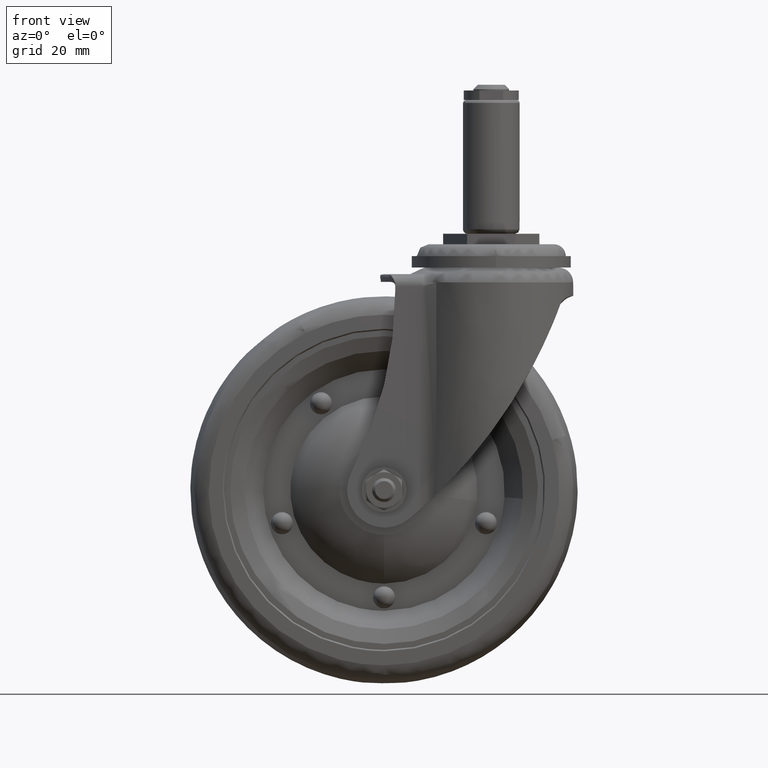
[diagram: clean part render]
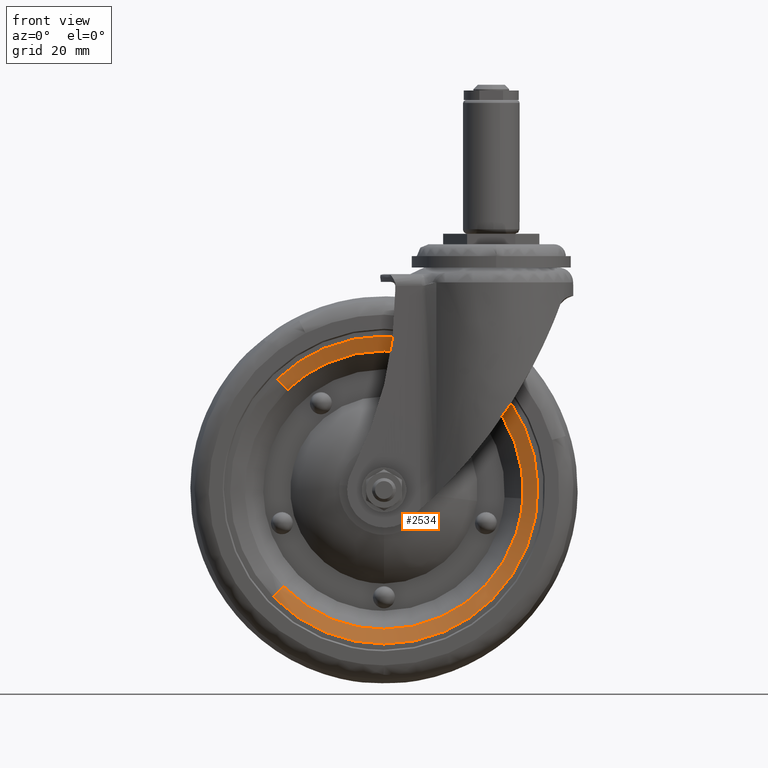
[diagram: same view with one face highlighted and labeled with its STEP entity id]
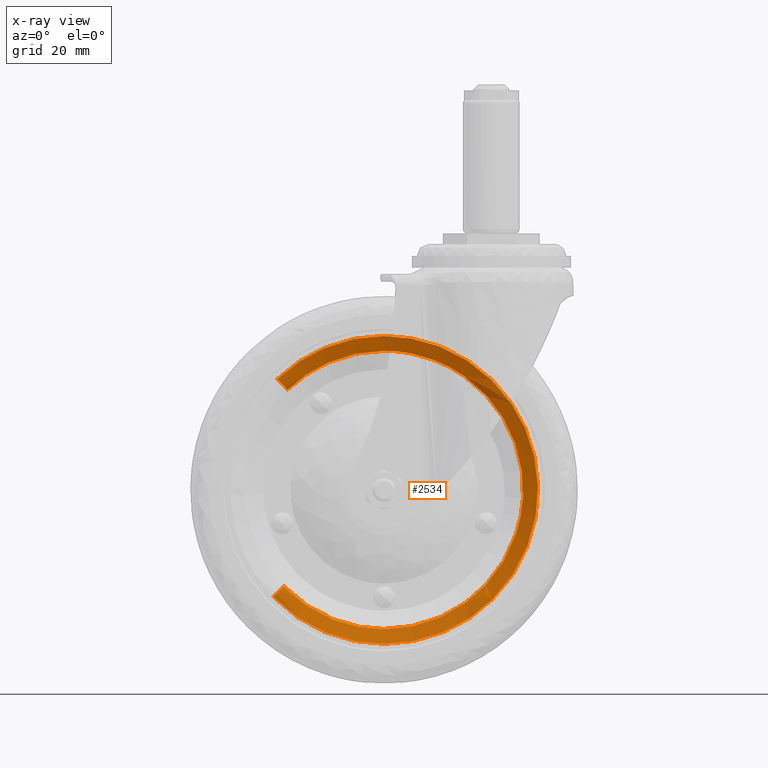
[diagram: x-ray of the same camera — body ghosted, the highlighted face saturated]
A machine part, front view. The second image highlights one B-rep face of the part: STEP entity #2534.
The next image is the same camera in x-ray: the body ghosted, the highlighted face saturated — about 0% of this face is hidden behind the body in this view.
In plain terms, the highlighted face is a freeform B-spline surface patch.
Its self-contained STEP definition (entity closure, byte-faithful):
#472=CARTESIAN_POINT('',(-19.576463500932380,-9.949747468313264,-42.274356688528300));
#473=VERTEX_POINT('',#472);
#474=CARTESIAN_POINT('',(-36.0,-9.949747468305830,-39.291721154953713));
#475=VERTEX_POINT('',#474);
#476=CARTESIAN_POINT('',(-19.576463500932373,-9.949747468313264,-42.274356688528307));
#477=CARTESIAN_POINT('',(-27.517397429003616,-9.949747468305832,-39.291721154953706));
#478=CARTESIAN_POINT('',(-36.0,-9.949747468305830,-39.291721154953713));
#486=(BOUNDED_CURVE()B_SPLINE_CURVE(2,(#476,#477,#478),.UNSPECIFIED.,.F.,.U.)B_SPLINE_CURVE_WITH_KNOTS((3,3),(0.440284170898375,0.500000000000000),.UNSPECIFIED.)CURVE()GEOMETRIC_REPRESENTATION_ITEM()RATIONAL_B_SPLINE_CURVE((0.893499554635112,0.930038554401244,1.0))REPRESENTATION_ITEM(''));
#487=EDGE_CURVE('',#473,#475,#486,.T.);
#489=CARTESIAN_POINT('',(-68.399482436912564,-9.949747468876772,-52.355657792426562));
#490=VERTEX_POINT('',#489);
#491=CARTESIAN_POINT('',(-36.0,-9.949747468305830,-39.291721154953713));
#492=CARTESIAN_POINT('',(-54.833524656206222,-9.949747468305832,-39.291721154953713));
#493=CARTESIAN_POINT('',(-68.399482436912564,-9.949747468876772,-52.355657792426570));
#501=(BOUNDED_CURVE()B_SPLINE_CURVE(2,(#491,#492,#493),.UNSPECIFIED.,.F.,.U.)B_SPLINE_CURVE_WITH_KNOTS((3,3),(0.500000000000000,0.622155737437377),.UNSPECIFIED.)CURVE()GEOMETRIC_REPRESENTATION_ITEM()RATIONAL_B_SPLINE_CURVE((1.0,0.856885651461742,0.853629213191970))REPRESENTATION_ITEM(''));
#502=EDGE_CURVE('',#475,#490,#501,.T.);
#504=CARTESIAN_POINT('',(-69.644530207573467,-9.949747468876765,-118.399670436912500));
#505=VERTEX_POINT('',#504);
#521=CARTESIAN_POINT('',(-36.0,-9.949747468305830,-132.708654845046310));
#522=VERTEX_POINT('',#521);
#523=CARTESIAN_POINT('',(-69.644530207573467,-9.949747468876767,-118.399670436912500));
#524=CARTESIAN_POINT('',(-55.865063346604764,-9.949747468305830,-132.708654845046230));
#525=CARTESIAN_POINT('',(-36.0,-9.949747468305830,-132.708654845046310));
#533=(BOUNDED_CURVE()B_SPLINE_CURVE(2,(#523,#524,#525),.UNSPECIFIED.,.F.,.U.)B_SPLINE_CURVE_WITH_KNOTS((3,3),(0.872155737437378,1.0),.UNSPECIFIED.)CURVE()GEOMETRIC_REPRESENTATION_ITEM()RATIONAL_B_SPLINE_CURVE((0.853629213191970,0.850221129724806,1.0))REPRESENTATION_ITEM(''));
#534=EDGE_CURVE('',#505,#522,#533,.T.);
#536=CARTESIAN_POINT('',(10.621346138976429,-9.949747468308946,-88.851671684826201));
#537=VERTEX_POINT('',#536);
#538=CARTESIAN_POINT('',(-36.0,-9.949747468305830,-132.708654845046310));
#539=CARTESIAN_POINT('',(7.938938136953913,-9.949747468305828,-132.708654845046280));
#540=CARTESIAN_POINT('',(10.621346138976431,-9.949747468308946,-88.851671684826201));
#548=(BOUNDED_CURVE()B_SPLINE_CURVE(2,(#538,#539,#540),.UNSPECIFIED.,.F.,.U.)B_SPLINE_CURVE_WITH_KNOTS((3,3),(0.0,0.239332962241793),.UNSPECIFIED.)CURVE()GEOMETRIC_REPRESENTATION_ITEM()RATIONAL_B_SPLINE_CURVE((1.0,0.719603993283371,0.976072041672827))REPRESENTATION_ITEM(''));
#549=EDGE_CURVE('',#522,#537,#548,.T.);
#627=CARTESIAN_POINT('',(10.621346138976431,-9.949747468308946,-88.851671684826201));
#628=CARTESIAN_POINT('',(10.708466845046303,-9.949747468305830,-87.427260731580418));
#629=CARTESIAN_POINT('',(10.708466845046299,-9.949747468305830,-86.000188000000009));
#630=CARTESIAN_POINT('',(10.708466845046299,-9.949747468305830,-53.649455663063080));
#631=CARTESIAN_POINT('',(-19.576463500932377,-9.949747468313264,-42.274356688528300));
#639=(BOUNDED_CURVE()B_SPLINE_CURVE(2,(#627,#628,#629,#630,#631),.UNSPECIFIED.,.F.,.U.)B_SPLINE_CURVE_WITH_KNOTS((3,2,3),(0.239332962241793,0.250000000000000,0.440284170898376),.UNSPECIFIED.)CURVE()GEOMETRIC_REPRESENTATION_ITEM()RATIONAL_B_SPLINE_CURVE((0.976072041672827,0.987502787903177,1.0,0.777068226785303,0.893499554635112))REPRESENTATION_ITEM(''));
#640=EDGE_CURVE('',#537,#473,#639,.T.);
#2423=CARTESIAN_POINT('',(-73.401970466761483,-11.994918257189854,-122.018063053306920));
#2424=CARTESIAN_POINT('',(-37.384095413454553,-11.994918257189857,-159.420033520068500));
#2425=CARTESIAN_POINT('',(0.017875053306949,-11.994918257189854,-123.402158466761520));
#2426=CARTESIAN_POINT('',(37.419845520068442,-11.994918257189857,-87.384283413454583));
#2427=CARTESIAN_POINT('',(1.401970466761482,-11.994918257189854,-49.982312946693035));
#2428=CARTESIAN_POINT('',(-34.615904586545426,-11.994918257189857,-12.580342479931572));
#2429=CARTESIAN_POINT('',(-72.017875053306966,-11.994918257189854,-48.598217533238525));
#2430=CARTESIAN_POINT('',(-71.086445328283887,-12.117475653001740,-119.788226120127290));
#2431=CARTESIAN_POINT('',(-37.298407208156540,-12.117475653001737,-154.874671448411250));
#2432=CARTESIAN_POINT('',(-2.211961879872653,-12.117475653001740,-121.086633328283910));
#2433=CARTESIAN_POINT('',(32.874483448411233,-12.117475653001737,-87.298595208156584));
#2434=CARTESIAN_POINT('',(-0.913554671716116,-12.117475653001740,-52.212149879872634));
#2435=CARTESIAN_POINT('',(-34.701592791843417,-12.117475653001737,-17.125704551588768));
#2436=CARTESIAN_POINT('',(-69.788038120127354,-12.117475653001740,-50.913742671716129));
#2437=CARTESIAN_POINT('',(-69.511459746024570,-9.757838825019192,-118.271524374079230));
#2438=CARTESIAN_POINT('',(-37.240123371945316,-9.757838825019192,-151.782984120103780));
#2439=CARTESIAN_POINT('',(-3.728663625920759,-9.757838825019192,-119.511647746024590));
#2440=CARTESIAN_POINT('',(29.782796120103786,-9.757838825019192,-87.240311371945353));
#2441=CARTESIAN_POINT('',(-2.488540253975458,-9.757838825019192,-53.728851625920747));
#2442=CARTESIAN_POINT('',(-34.759876628054649,-9.757838825019192,-20.217391879896230));
#2443=CARTESIAN_POINT('',(-68.271336374079254,-9.757838825019192,-52.488728253975466));
#2451=(BOUNDED_SURFACE()B_SPLINE_SURFACE(2,2,((#2423,#2430,#2437),(#2424,#2431,#2438),(#2425,#2432,#2439),(#2426,#2433,#2440),(#2427,#2434,#2441),(#2428,#2435,#2442),(#2429,#2436,#2443)),.UNSPECIFIED.,.F.,.F.,.U.)B_SPLINE_SURFACE_WITH_KNOTS((3,2,2,3),(3,3),(0.0,86.031982893572490,172.063965787145010,258.095948680717530),(0.0,6.125955358099176),.UNSPECIFIED.)GEOMETRIC_REPRESENTATION_ITEM()RATIONAL_B_SPLINE_SURFACE(((0.930128281341079,0.845728310048117,0.931397597509836),(0.657700015109666,0.598020223076462,0.658597557180064),(0.930128281341079,0.845728310048117,0.931397597509836),(0.657700015109666,0.598020223076462,0.658597557180064),(0.930128281341079,0.845728310048117,0.931397597509836),(0.657700015109666,0.598020223076462,0.658597557180064),(0.930128281341079,0.845728310048117,0.931397597509836)))REPRESENTATION_ITEM('')SURFACE());
#2452=CARTESIAN_POINT('',(-73.209877977777850,-12.0,-121.833079129202600));
#2453=VERTEX_POINT('',#2452);
#2454=CARTESIAN_POINT('',(-36.0,-12.0,-137.658402313352210));
#2455=VERTEX_POINT('',#2454);
#2456=CARTESIAN_POINT('',(-73.209877977777850,-12.000000000000005,-121.833079129202620));
#2457=CARTESIAN_POINT('',(-57.970185900364228,-11.999999999999998,-137.658402313352210));
#2458=CARTESIAN_POINT('',(-36.0,-12.0,-137.658402313352210));
#2466=(BOUNDED_CURVE()B_SPLINE_CURVE(2,(#2456,#2457,#2458),.UNSPECIFIED.,.F.,.U.)B_SPLINE_CURVE_WITH_KNOTS((3,3),(0.872155737437437,1.0),.UNSPECIFIED.)CURVE()GEOMETRIC_REPRESENTATION_ITEM()RATIONAL_B_SPLINE_CURVE((0.853629213191967,0.850221129724875,1.0))REPRESENTATION_ITEM(''));
#2467=EDGE_CURVE('',#2453,#2455,#2466,.T.);
#2468=ORIENTED_EDGE('',*,*,#2467,.T.);
#2469=CARTESIAN_POINT('',(-36.0,-12.0,-34.341973686647812));
#2470=VERTEX_POINT('',#2469);
#2471=CARTESIAN_POINT('',(-36.0,-12.0,-137.658402313352210));
#2472=CARTESIAN_POINT('',(15.658214313352198,-12.0,-137.658402313352180));
#2473=CARTESIAN_POINT('',(15.658214313352200,-12.0,-86.000188000000009));
#2474=CARTESIAN_POINT('',(15.658214313352198,-12.0,-34.341973686647812));
#2475=CARTESIAN_POINT('',(-36.0,-12.0,-34.341973686647812));
#2483=(BOUNDED_CURVE()B_SPLINE_CURVE(2,(#2471,#2472,#2473,#2474,#2475),.UNSPECIFIED.,.F.,.U.)B_SPLINE_CURVE_WITH_KNOTS((3,2,3),(0.0,0.250000000000000,0.500000000000000),.UNSPECIFIED.)CURVE()GEOMETRIC_REPRESENTATION_ITEM()RATIONAL_B_SPLINE_CURVE((1.0,0.707106781186548,1.0,0.707106781186548,1.0))REPRESENTATION_ITEM(''));
#2484=EDGE_CURVE('',#2455,#2470,#2483,.T.);
#2485=ORIENTED_EDGE('',*,*,#2484,.T.);
#2486=CARTESIAN_POINT('',(-71.832891129202565,-12.0,-48.790310022222158));
#2487=VERTEX_POINT('',#2486);
#2488=CARTESIAN_POINT('',(-36.0,-12.0,-34.341973686647812));
#2489=CARTESIAN_POINT('',(-56.829333923424272,-12.000000000000002,-34.341973686647805));
#2490=CARTESIAN_POINT('',(-71.832891129202565,-12.000000000000005,-48.790310022222158));
#2498=(BOUNDED_CURVE()B_SPLINE_CURVE(2,(#2488,#2489,#2490),.UNSPECIFIED.,.F.,.U.)B_SPLINE_CURVE_WITH_KNOTS((3,3),(0.500000000000000,0.622155737437437),.UNSPECIFIED.)CURVE()GEOMETRIC_REPRESENTATION_ITEM()RATIONAL_B_SPLINE_CURVE((1.0,0.856885651461672,0.853629213191967))REPRESENTATION_ITEM(''));
#2499=EDGE_CURVE('',#2470,#2487,#2498,.T.);
#2500=ORIENTED_EDGE('',*,*,#2499,.T.);
#2501=CARTESIAN_POINT('',(-71.832891129202565,-11.999999999999995,-48.790310022222158));
#2502=CARTESIAN_POINT('',(-69.821646882163847,-11.999999998028892,-50.878842391695365));
#2503=CARTESIAN_POINT('',(-68.399482436912564,-9.949747468876772,-52.355657792426562));
#2511=(BOUNDED_CURVE()B_SPLINE_CURVE(2,(#2501,#2502,#2503),.UNSPECIFIED.,.F.,.U.)B_SPLINE_CURVE_WITH_KNOTS((3,3),(-1.556175678319044,-0.434617038202760),.UNSPECIFIED.)CURVE()GEOMETRIC_REPRESENTATION_ITEM()RATIONAL_B_SPLINE_CURVE((0.922813124659054,0.853101096592436,0.923967181604135))REPRESENTATION_ITEM(''));
#2512=EDGE_CURVE('',#2487,#490,#2511,.T.);
#2513=ORIENTED_EDGE('',*,*,#2512,.T.);
#2514=ORIENTED_EDGE('',*,*,#502,.F.);
#2515=ORIENTED_EDGE('',*,*,#487,.F.);
#2516=ORIENTED_EDGE('',*,*,#640,.F.);
#2517=ORIENTED_EDGE('',*,*,#549,.F.);
#2518=ORIENTED_EDGE('',*,*,#534,.F.);
#2519=CARTESIAN_POINT('',(-73.209877977777850,-11.999999999999998,-121.833079129202660));
#2520=CARTESIAN_POINT('',(-71.121345608304637,-11.999999998028896,-119.821834882163880));
#2521=CARTESIAN_POINT('',(-69.644530207573467,-9.949747468876765,-118.399670436912500));
#2529=(BOUNDED_CURVE()B_SPLINE_CURVE(2,(#2519,#2520,#2521),.UNSPECIFIED.,.F.,.U.)B_SPLINE_CURVE_WITH_KNOTS((3,3),(-1.556175678319043,-0.434617038202755),.UNSPECIFIED.)CURVE()GEOMETRIC_REPRESENTATION_ITEM()RATIONAL_B_SPLINE_CURVE((0.922813124659053,0.853101096592436,0.923967181604135))REPRESENTATION_ITEM(''));
#2530=EDGE_CURVE('',#2453,#505,#2529,.T.);
#2531=ORIENTED_EDGE('',*,*,#2530,.F.);
#2532=EDGE_LOOP('',(#2468,#2485,#2500,#2513,#2514,#2515,#2516,#2517,#2518,#2531));
#2533=FACE_OUTER_BOUND('',#2532,.T.);
#2534=ADVANCED_FACE('',(#2533),#2451,.T.);